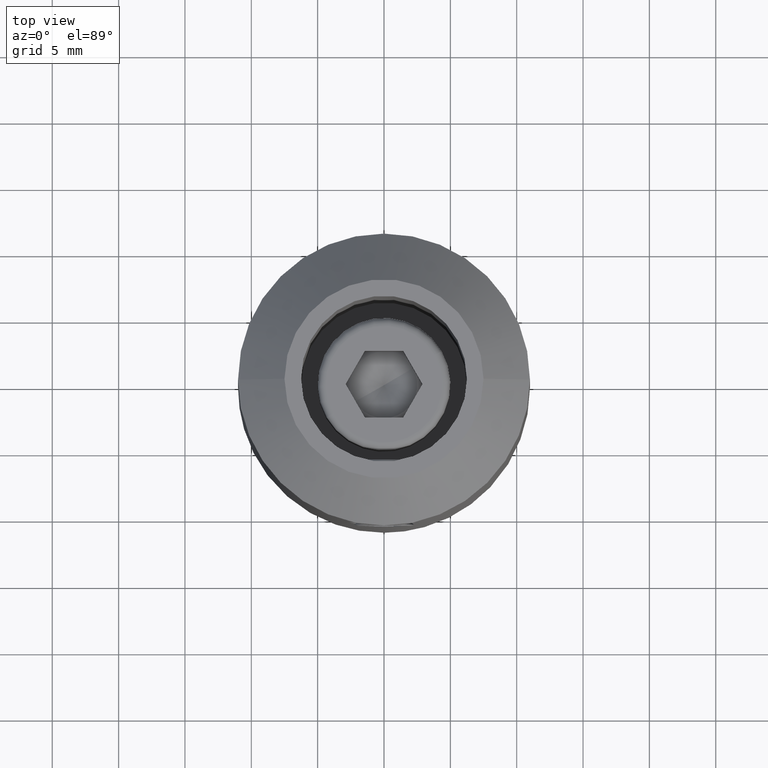
[diagram: clean part render]
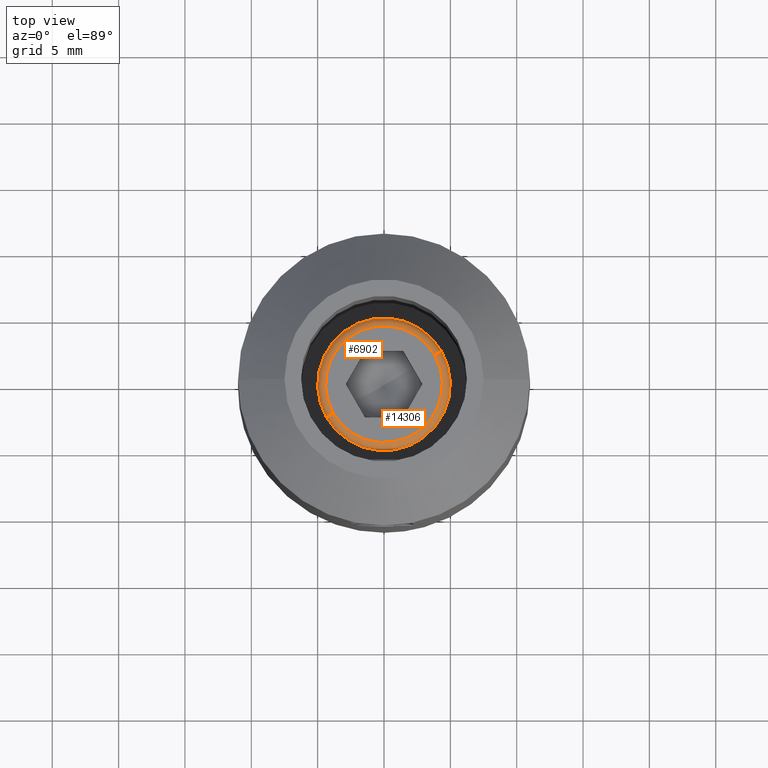
[diagram: same view with one multi-face feature highlighted, each face labeled with its STEP entity id]
A machine part, top view. The highlighted faces form ONE feature: a constant-radius fillet chain: 2 tangent blend faces with common blend radius 0.6 mm. The faces share edges in the B-rep.
Their STEP definitions:
[1] entity #6902 (Torus):
#458 = CARTESIAN_POINT ( 'NONE',  ( 0.6000000000000033085, 0.000000000000000000, 0.000000000000000000 ) ) ;
#530 = DIRECTION ( 'NONE',  ( 0.000000000000000000, -2.109423746787771000E-15, 1.000000000000000000 ) ) ;
#782 = EDGE_CURVE ( 'NONE', #16132, #5324, #8427, .T. ) ;
#1692 = CARTESIAN_POINT ( 'NONE',  ( 0.6000000000000033085, -9.281464485866309625E-15, 4.400000000000054534 ) ) ;
#2130 = VERTEX_POINT ( 'NONE', #11797 ) ;
#2936 = CARTESIAN_POINT ( 'NONE',  ( 0.000000000000000000, 0.000000000000000000, 0.000000000000000000 ) ) ;
#3116 = AXIS2_PLACEMENT_3D ( 'NONE', #458, #12279, #530 ) ;
#3166 = CARTESIAN_POINT ( 'NONE',  ( 0.000000000000000000, -9.281464485866309625E-15, 4.400000000000054534 ) ) ;
#3306 = DIRECTION ( 'NONE',  ( 0.000000000000000000, 1.000000000000000000, 2.231888426702506543E-15 ) ) ;
#3401 = AXIS2_PLACEMENT_3D ( 'NONE', #6829, #3306, #14873 ) ;
#4412 = ORIENTED_EDGE ( 'NONE', *, *, #782, .F. ) ;
#4786 = AXIS2_PLACEMENT_3D ( 'NONE', #1692, #16659, #13038 ) ;
#5324 = VERTEX_POINT ( 'NONE', #3166 ) ;
#5445 = CIRCLE ( 'NONE', #8396, 4.400000000000054534 ) ;
#5707 = AXIS2_PLACEMENT_3D ( 'NONE', #21406, #8214, #13058 ) ;
#6636 = EDGE_CURVE ( 'NONE', #7349, #16132, #18975, .T. ) ;
#6829 = CARTESIAN_POINT ( 'NONE',  ( 0.6000000000000033085, 9.820309077491149956E-15, -4.400000000000054534 ) ) ;
#6902 = ADVANCED_FACE ( 'NONE', ( #20167 ), #9842, .T. ) ;
#7349 = VERTEX_POINT ( 'NONE', #14371 ) ;
#7810 = EDGE_CURVE ( 'NONE', #5324, #2130, #5445, .T. ) ;
#8214 = DIRECTION ( 'NONE',  ( 1.000000000000000000, -0.000000000000000000, -0.000000000000000000 ) ) ;
#8396 = AXIS2_PLACEMENT_3D ( 'NONE', #2936, #11302, #17725 ) ;
#8427 = CIRCLE ( 'NONE', #4786, 0.5999999999999998668 ) ;
#9842 = TOROIDAL_SURFACE ( 'NONE', #3116, 4.400000000000000355, 0.5999999999999999778 ) ;
#11302 = DIRECTION ( 'NONE',  ( -1.000000000000000000, 0.000000000000000000, 0.000000000000000000 ) ) ;
#11797 = CARTESIAN_POINT ( 'NONE',  ( 0.000000000000000000, 1.048987560550177941E-14, -4.400000000000000355 ) ) ;
#12279 = DIRECTION ( 'NONE',  ( -1.000000000000000000, 0.000000000000000000, 0.000000000000000000 ) ) ;
#13038 = DIRECTION ( 'NONE',  ( 0.000000000000000000, 2.109423746787771000E-15, -1.000000000000000000 ) ) ;
#13058 = DIRECTION ( 'NONE',  ( 0.000000000000000000, -2.109423746787771394E-15, 1.000000000000000000 ) ) ;
#14371 = CARTESIAN_POINT ( 'NONE',  ( 0.6000000000000033085, 1.115944213351253350E-14, -5.000000000000000000 ) ) ;
#14873 = DIRECTION ( 'NONE',  ( 0.000000000000000000, -2.231888426702507726E-15, 1.000000000000000000 ) ) ;
#15660 = CARTESIAN_POINT ( 'NONE',  ( 0.6000000000000033085, -1.054711873393898713E-14, 5.000000000000062172 ) ) ;
#16132 = VERTEX_POINT ( 'NONE', #15660 ) ;
#16659 = DIRECTION ( 'NONE',  ( -0.000000000000000000, -1.000000000000000000, -2.109423746787771394E-15 ) ) ;
#17362 = ORIENTED_EDGE ( 'NONE', *, *, #7810, .F. ) ;
#17725 = DIRECTION ( 'NONE',  ( 0.000000000000000000, -2.109423746787771394E-15, 1.000000000000000000 ) ) ;
#17952 = CIRCLE ( 'NONE', #3401, 0.5999999999999998668 ) ;
#18185 = ORIENTED_EDGE ( 'NONE', *, *, #20652, .T. ) ;
#18279 = EDGE_LOOP ( 'NONE', ( #20484, #18185, #17362, #4412 ) ) ;
#18975 = CIRCLE ( 'NONE', #5707, 5.000000000000062172 ) ;
#20167 = FACE_OUTER_BOUND ( 'NONE', #18279, .T. ) ;
#20484 = ORIENTED_EDGE ( 'NONE', *, *, #6636, .F. ) ;
#20652 = EDGE_CURVE ( 'NONE', #7349, #2130, #17952, .T. ) ;
#21406 = CARTESIAN_POINT ( 'NONE',  ( 0.6000000000000033085, 0.000000000000000000, 0.000000000000000000 ) ) ;
[2] entity #14306 (Torus):
#782 = EDGE_CURVE ( 'NONE', #16132, #5324, #8427, .T. ) ;
#1564 = ORIENTED_EDGE ( 'NONE', *, *, #9331, .F. ) ;
#1692 = CARTESIAN_POINT ( 'NONE',  ( 0.6000000000000033085, -9.281464485866309625E-15, 4.400000000000054534 ) ) ;
#2130 = VERTEX_POINT ( 'NONE', #11797 ) ;
#2237 = DIRECTION ( 'NONE',  ( 1.000000000000000000, -0.000000000000000000, -0.000000000000000000 ) ) ;
#2268 = DIRECTION ( 'NONE',  ( -1.000000000000000000, 0.000000000000000000, 0.000000000000000000 ) ) ;
#3166 = CARTESIAN_POINT ( 'NONE',  ( 0.000000000000000000, -9.281464485866309625E-15, 4.400000000000054534 ) ) ;
#3306 = DIRECTION ( 'NONE',  ( 0.000000000000000000, 1.000000000000000000, 2.231888426702506543E-15 ) ) ;
#3401 = AXIS2_PLACEMENT_3D ( 'NONE', #6829, #3306, #14873 ) ;
#4786 = AXIS2_PLACEMENT_3D ( 'NONE', #1692, #16659, #13038 ) ;
#5324 = VERTEX_POINT ( 'NONE', #3166 ) ;
#5507 = CARTESIAN_POINT ( 'NONE',  ( 0.6000000000000033085, 0.000000000000000000, 0.000000000000000000 ) ) ;
#6829 = CARTESIAN_POINT ( 'NONE',  ( 0.6000000000000033085, 9.820309077491149956E-15, -4.400000000000054534 ) ) ;
#6980 = DIRECTION ( 'NONE',  ( -1.000000000000000000, 0.000000000000000000, 0.000000000000000000 ) ) ;
#7065 = CARTESIAN_POINT ( 'NONE',  ( 0.6000000000000033085, 0.000000000000000000, 0.000000000000000000 ) ) ;
#7349 = VERTEX_POINT ( 'NONE', #14371 ) ;
#7568 = AXIS2_PLACEMENT_3D ( 'NONE', #20349, #6980, #20070 ) ;
#8427 = CIRCLE ( 'NONE', #4786, 0.5999999999999998668 ) ;
#9331 = EDGE_CURVE ( 'NONE', #2130, #5324, #18859, .T. ) ;
#11797 = CARTESIAN_POINT ( 'NONE',  ( 0.000000000000000000, 1.048987560550177941E-14, -4.400000000000000355 ) ) ;
#12364 = ORIENTED_EDGE ( 'NONE', *, *, #16585, .F. ) ;
#13038 = DIRECTION ( 'NONE',  ( 0.000000000000000000, 2.109423746787771000E-15, -1.000000000000000000 ) ) ;
#13566 = FACE_OUTER_BOUND ( 'NONE', #19183, .T. ) ;
#13594 = ORIENTED_EDGE ( 'NONE', *, *, #782, .T. ) ;
#13801 = DIRECTION ( 'NONE',  ( 0.000000000000000000, -2.109423746787771394E-15, 1.000000000000000000 ) ) ;
#14306 = ADVANCED_FACE ( 'NONE', ( #13566 ), #15115, .T. ) ;
#14371 = CARTESIAN_POINT ( 'NONE',  ( 0.6000000000000033085, 1.115944213351253350E-14, -5.000000000000000000 ) ) ;
#14873 = DIRECTION ( 'NONE',  ( 0.000000000000000000, -2.231888426702507726E-15, 1.000000000000000000 ) ) ;
#15115 = TOROIDAL_SURFACE ( 'NONE', #21153, 4.400000000000000355, 0.5999999999999999778 ) ;
#15660 = CARTESIAN_POINT ( 'NONE',  ( 0.6000000000000033085, -1.054711873393898713E-14, 5.000000000000062172 ) ) ;
#16132 = VERTEX_POINT ( 'NONE', #15660 ) ;
#16585 = EDGE_CURVE ( 'NONE', #16132, #7349, #16863, .T. ) ;
#16659 = DIRECTION ( 'NONE',  ( -0.000000000000000000, -1.000000000000000000, -2.109423746787771394E-15 ) ) ;
#16863 = CIRCLE ( 'NONE', #17882, 5.000000000000062172 ) ;
#17590 = ORIENTED_EDGE ( 'NONE', *, *, #20652, .F. ) ;
#17882 = AXIS2_PLACEMENT_3D ( 'NONE', #7065, #2237, #13801 ) ;
#17952 = CIRCLE ( 'NONE', #3401, 0.5999999999999998668 ) ;
#18859 = CIRCLE ( 'NONE', #7568, 4.400000000000054534 ) ;
#19183 = EDGE_LOOP ( 'NONE', ( #17590, #12364, #13594, #1564 ) ) ;
#20070 = DIRECTION ( 'NONE',  ( 0.000000000000000000, -2.109423746787771394E-15, 1.000000000000000000 ) ) ;
#20349 = CARTESIAN_POINT ( 'NONE',  ( 0.000000000000000000, 0.000000000000000000, 0.000000000000000000 ) ) ;
#20600 = DIRECTION ( 'NONE',  ( 0.000000000000000000, -2.109423746787771000E-15, 1.000000000000000000 ) ) ;
#20652 = EDGE_CURVE ( 'NONE', #7349, #2130, #17952, .T. ) ;
#21153 = AXIS2_PLACEMENT_3D ( 'NONE', #5507, #2268, #20600 ) ;